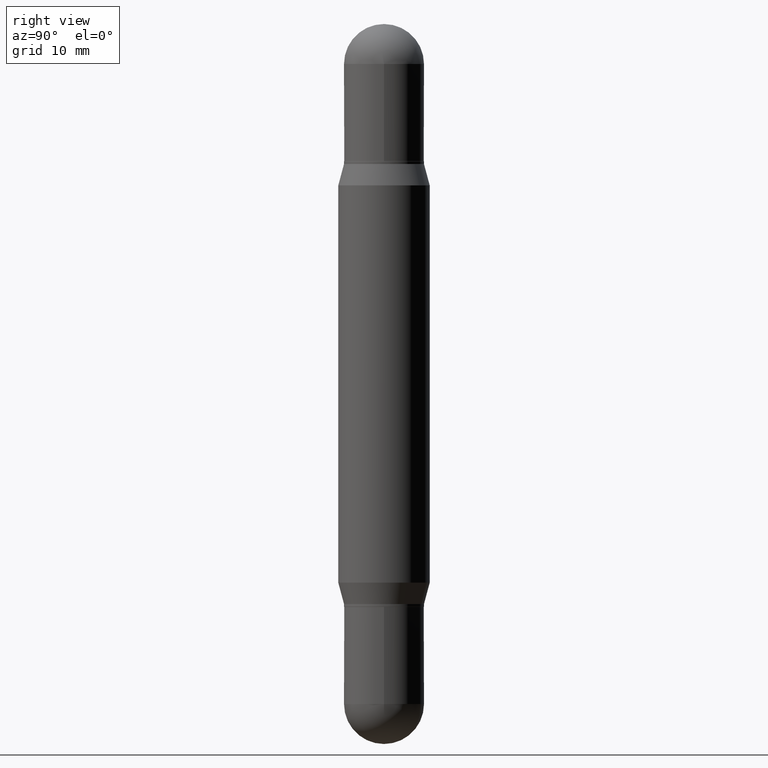
[diagram: clean part render]
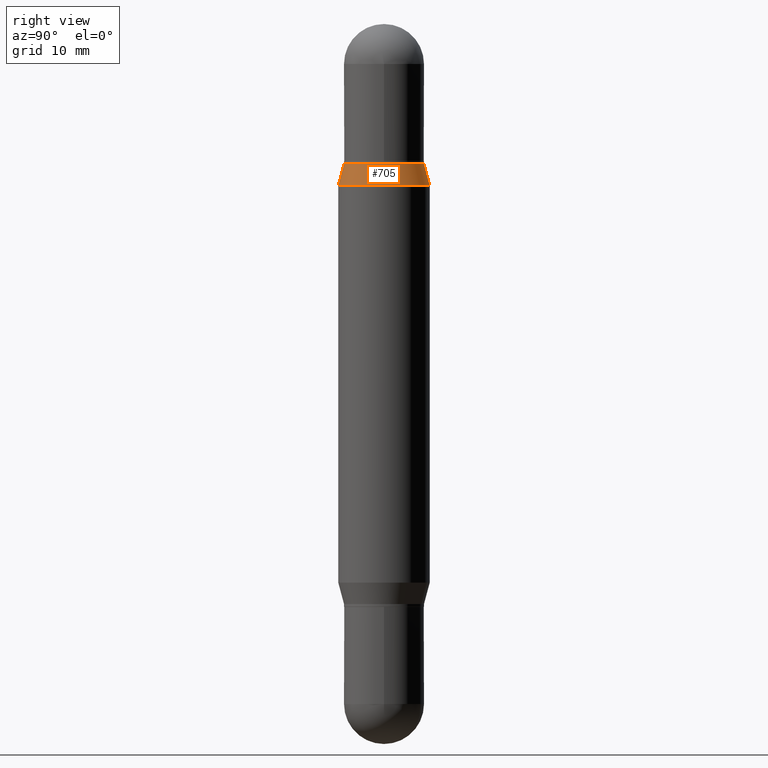
[diagram: same view with one face highlighted and labeled with its STEP entity id]
A machine part, right view. The second image highlights one B-rep face of the part: STEP entity #705.
In plain terms, the highlighted conical surface has half-angle 15 deg.
Its self-contained STEP definition (entity closure, byte-faithful):
#6 = DIRECTION ( 'NONE',  ( -6.982962677686265922E-15, -1.000000000000000000, 3.469328003564920291E-15 ) ) ;
#62 = AXIS2_PLACEMENT_3D ( 'NONE', #971, #1056, #881 ) ;
#121 = CARTESIAN_POINT ( 'NONE',  ( 4.888662877537232505E-29, -1.689185963677074620E-15, -0.4823999999999999955 ) ) ;
#148 = DIRECTION ( 'NONE',  ( -6.982962677686265922E-15, -1.000000000000000000, 3.469328003564920291E-15 ) ) ;
#152 = DIRECTION ( 'NONE',  ( -1.807323732225330534E-15, -0.2588190451025250138, -0.9659258262890670910 ) ) ;
#159 = VERTEX_POINT ( 'NONE', #790 ) ;
#175 = CIRCLE ( 'NONE', #62, 0.1575000000000000011 ) ;
#201 = DIRECTION ( 'NONE',  ( -2.446900684487327434E-29, -3.481664998204017086E-15, -1.000000000000000000 ) ) ;
#320 = ORIENTED_EDGE ( 'NONE', *, *, #665, .T. ) ;
#334 = DIRECTION ( 'NONE',  ( 1.775627540710965497E-15, 0.2588190451025182415, -0.9659258262890689783 ) ) ;
#434 = CARTESIAN_POINT ( 'NONE',  ( 4.888662877537232505E-29, -1.689185963677074620E-15, -0.4823999999999999955 ) ) ;
#452 = ORIENTED_EDGE ( 'NONE', *, *, #547, .F. ) ;
#460 = ORIENTED_EDGE ( 'NONE', *, *, #847, .F. ) ;
#523 = LINE ( 'NONE', #866, #1051 ) ;
#535 = EDGE_LOOP ( 'NONE', ( #452, #460, #773, #320 ) ) ;
#547 = EDGE_CURVE ( 'NONE', #159, #554, #523, .T. ) ;
#554 = VERTEX_POINT ( 'NONE', #1028 ) ;
#579 = VERTEX_POINT ( 'NONE', #689 ) ;
#621 = FACE_OUTER_BOUND ( 'NONE', #535, .T. ) ;
#657 = DIRECTION ( 'NONE',  ( 2.446900684487327434E-29, 3.481664998204017086E-15, 1.000000000000000000 ) ) ;
#659 = VECTOR ( 'NONE', #152, 39.37007874015748143 ) ;
#665 = EDGE_CURVE ( 'NONE', #579, #554, #175, .T. ) ;
#678 = AXIS2_PLACEMENT_3D ( 'NONE', #434, #201, #6 ) ;
#689 = CARTESIAN_POINT ( 'NONE',  ( -1.099816621735539754E-15, -0.1575000000000019440, -0.5559214009091061337 ) ) ;
#705 = ADVANCED_FACE ( 'NONE', ( #621 ), #855, .T. ) ;
#723 = CARTESIAN_POINT ( 'NONE',  ( -9.622522569851185676E-16, -0.1378000000000016989, -0.4823999999999995514 ) ) ;
#773 = ORIENTED_EDGE ( 'NONE', *, *, #921, .T. ) ;
#790 = CARTESIAN_POINT ( 'NONE',  ( 9.453766240929659631E-16, 0.1377999999999983127, -0.4824000000000004951 ) ) ;
#821 = AXIS2_PLACEMENT_3D ( 'NONE', #121, #657, #148 ) ;
#825 = VERTEX_POINT ( 'NONE', #723 ) ;
#847 = EDGE_CURVE ( 'NONE', #825, #159, #1023, .T. ) ;
#849 = CARTESIAN_POINT ( 'NONE',  ( -9.622522569851185676E-16, -0.1378000000000016989, -0.4823999999999995514 ) ) ;
#855 = CONICAL_SURFACE ( 'NONE', #678, 0.1378000000000000058, 0.2617993877991502960 ) ;
#866 = CARTESIAN_POINT ( 'NONE',  ( 9.453766240929657659E-16, 0.1377999999999983127, -0.4824000000000004951 ) ) ;
#881 = DIRECTION ( 'NONE',  ( -6.982962677686264344E-15, -1.000000000000000000, 3.469013325287953293E-15 ) ) ;
#921 = EDGE_CURVE ( 'NONE', #825, #579, #1098, .T. ) ;
#971 = CARTESIAN_POINT ( 'NONE',  ( 4.708763311328271682E-29, -1.945162851841235390E-15, -0.5559214009091065778 ) ) ;
#1023 = CIRCLE ( 'NONE', #821, 0.1378000000000000058 ) ;
#1028 = CARTESIAN_POINT ( 'NONE',  ( 1.080528434649063111E-15, 0.1574999999999980582, -0.5559214009091071329 ) ) ;
#1051 = VECTOR ( 'NONE', #334, 39.37007874015748143 ) ;
#1056 = DIRECTION ( 'NONE',  ( 2.446900684487327434E-29, 3.481664998204017086E-15, 1.000000000000000000 ) ) ;
#1098 = LINE ( 'NONE', #849, #659 ) ;